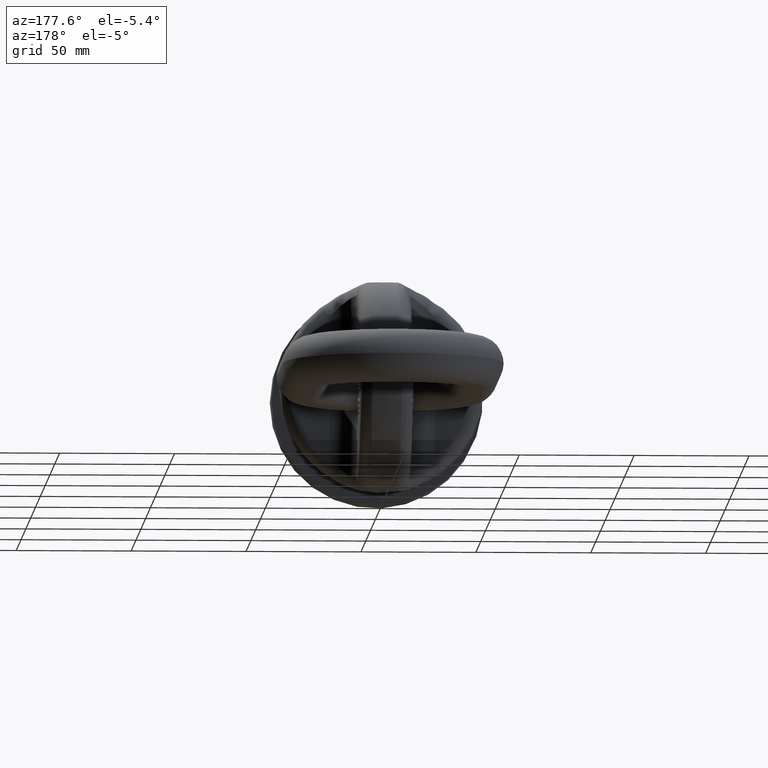
[diagram: clean part render]
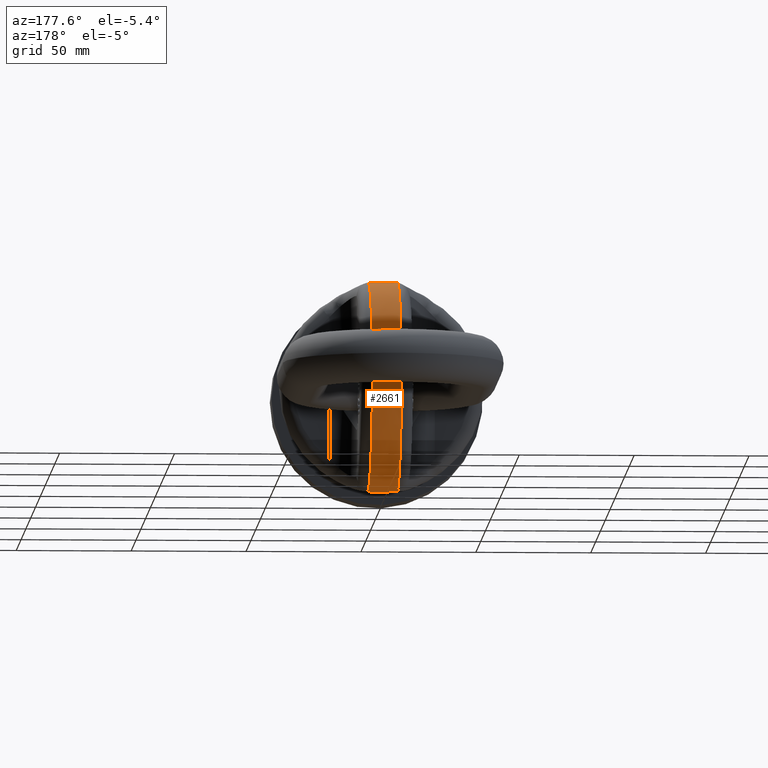
[diagram: same view with one face highlighted and labeled with its STEP entity id]
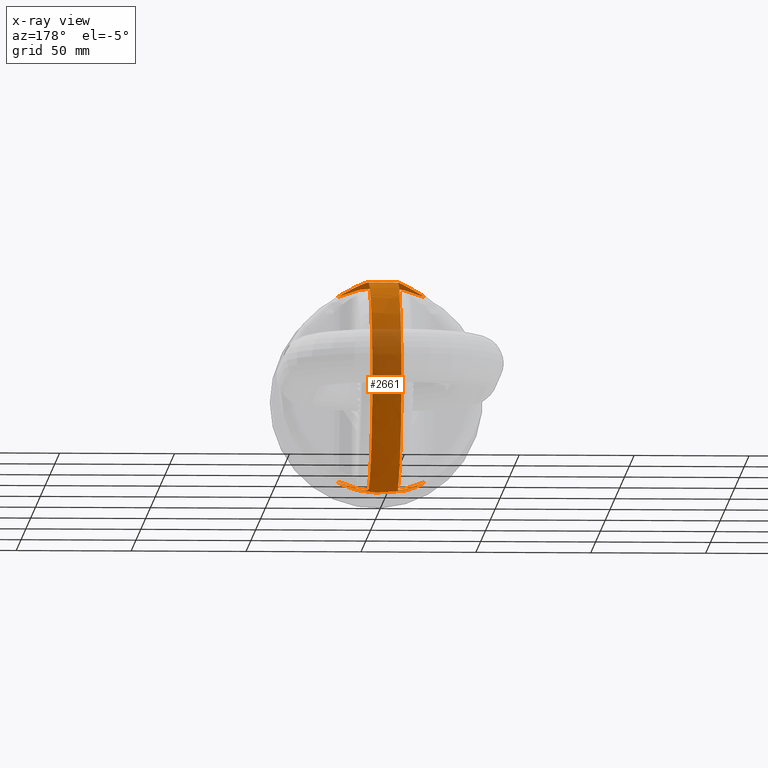
[diagram: x-ray of the same camera — body ghosted, the highlighted face saturated]
A machine part, auxiliary view. The second image highlights one B-rep face of the part: STEP entity #2661.
The next image is the same camera in x-ray: the body ghosted, the highlighted face saturated — about 24% of this face is hidden behind the body in this view.
In plain terms, the highlighted spherical surface has radius 46 mm.
Its self-contained STEP definition (entity closure, byte-faithful):
#307=SPHERICAL_SURFACE('',#5648,46.);
#349=B_SPLINE_CURVE_WITH_KNOTS('',3,(#7009,#7010,#7011,#7012,#7013,#7014),
 .UNSPECIFIED.,.F.,.F.,(4,2,4),(0.,0.5,1.),.UNSPECIFIED.);
#350=B_SPLINE_CURVE_WITH_KNOTS('',3,(#7018,#7019,#7020,#7021,#7022,#7023),
 .UNSPECIFIED.,.F.,.F.,(4,2,4),(0.,0.5,1.),.UNSPECIFIED.);
#351=B_SPLINE_CURVE_WITH_KNOTS('',3,(#7027,#7028,#7029,#7030,#7031,#7032),
 .UNSPECIFIED.,.F.,.F.,(4,2,4),(0.,0.5,1.),.UNSPECIFIED.);
#352=B_SPLINE_CURVE_WITH_KNOTS('',3,(#7036,#7037,#7038,#7039,#7040,#7041),
 .UNSPECIFIED.,.F.,.F.,(4,2,4),(0.,0.5,1.),.UNSPECIFIED.);
#1814=FACE_OUTER_BOUND('',#3096,.T.);
#2661=ADVANCED_FACE('',(#1814),#307,.T.);
#3096=EDGE_LOOP('',(#3513,#3514,#3515,#3516,#3517,#3518,#3519,#3520));
#3513=ORIENTED_EDGE('',*,*,#5058,.F.);
#3514=ORIENTED_EDGE('',*,*,#5059,.T.);
#3515=ORIENTED_EDGE('',*,*,#5060,.T.);
#3516=ORIENTED_EDGE('',*,*,#5061,.T.);
#3517=ORIENTED_EDGE('',*,*,#5062,.F.);
#3518=ORIENTED_EDGE('',*,*,#5063,.T.);
#3519=ORIENTED_EDGE('',*,*,#5064,.T.);
#3520=ORIENTED_EDGE('',*,*,#5065,.T.);
#4645=VERTEX_POINT('',#7007);
#4646=VERTEX_POINT('',#7008);
#4647=VERTEX_POINT('',#7015);
#4648=VERTEX_POINT('',#7017);
#4649=VERTEX_POINT('',#7024);
#4650=VERTEX_POINT('',#7026);
#4651=VERTEX_POINT('',#7033);
#4652=VERTEX_POINT('',#7035);
#5058=EDGE_CURVE('',#4645,#4646,#5553,.T.);
#5059=EDGE_CURVE('',#4645,#4647,#349,.T.);
#5060=EDGE_CURVE('',#4647,#4648,#5554,.T.);
#5061=EDGE_CURVE('',#4648,#4649,#350,.T.);
#5062=EDGE_CURVE('',#4650,#4649,#5555,.T.);
#5063=EDGE_CURVE('',#4650,#4651,#351,.T.);
#5064=EDGE_CURVE('',#4651,#4652,#5556,.T.);
#5065=EDGE_CURVE('',#4652,#4646,#352,.T.);
#5553=CIRCLE('',#5644,44.6040210296982);
#5554=CIRCLE('',#5645,45.5630812720123);
#5555=CIRCLE('',#5646,44.6040210296982);
#5556=CIRCLE('',#5647,45.5630812720123);
#5644=AXIS2_PLACEMENT_3D('',#7006,#5959,#5960);
#5645=AXIS2_PLACEMENT_3D('',#7016,#5961,#5962);
#5646=AXIS2_PLACEMENT_3D('',#7025,#5963,#5964);
#5647=AXIS2_PLACEMENT_3D('',#7034,#5965,#5966);
#5648=AXIS2_PLACEMENT_3D('',#7042,#5967,#5968);
#5959=DIRECTION('',(0.,-1.,0.));
#5960=DIRECTION('',(0.,0.,-1.));
#5961=DIRECTION('',(1.,3.74156043838135E-16,2.34291072916505E-15));
#5962=DIRECTION('',(3.8073006204749E-16,-1.,8.79206184588342E-31));
#5963=DIRECTION('',(0.,-1.,0.));
#5964=DIRECTION('',(0.,0.,-1.));
#5965=DIRECTION('',(-1.,3.74156043838135E-16,0.));
#5966=DIRECTION('',(-3.8073006204749E-16,-1.,0.));
#5967=DIRECTION('',(6.12323399573677E-17,-1.,0.));
#5968=DIRECTION('',(1.,0.,0.));
#7006=CARTESIAN_POINT('',(0.,62.7536091130426,0.));
#7007=CARTESIAN_POINT('',(-19.0658854113883,62.7536091130426,-40.3238230516102));
#7008=CARTESIAN_POINT('',(19.0658854113883,62.7536091130426,-40.3238230516102));
#7009=CARTESIAN_POINT('',(-19.0658854113883,62.7536091130426,-40.3238230516103));
#7010=CARTESIAN_POINT('',(-15.6589421955209,64.0973799500899,-42.3094721045357));
#7011=CARTESIAN_POINT('',(-12.3940464076201,66.5031072569069,-43.8589004368606));
#7012=CARTESIAN_POINT('',(-7.66656665600717,73.1737931290923,-45.5407517790561));
#7013=CARTESIAN_POINT('',(-6.32499999999988,77.3338114370422,-45.6344591871543));
#7014=CARTESIAN_POINT('',(-6.32499999999989,81.475,-44.9457311654845));
#7015=CARTESIAN_POINT('',(-6.32499999999988,81.475,-44.9457311654845));
#7016=CARTESIAN_POINT('',(-6.32499999999999,74.,-1.48189103619689E-14));
#7017=CARTESIAN_POINT('',(-6.32500000000009,81.475,44.9457311654845));
#7018=CARTESIAN_POINT('',(-6.3250000000001,81.475,44.9457311654845));
#7019=CARTESIAN_POINT('',(-6.3250000000001,77.3247485823992,45.6359664457237));
#7020=CARTESIAN_POINT('',(-7.69286635418536,73.1262415183092,45.5332572584253));
#7021=CARTESIAN_POINT('',(-12.4024855817113,66.5017181466277,43.854022436174));
#7022=CARTESIAN_POINT('',(-15.6449151505764,64.1029125148356,42.3176474061902));
#7023=CARTESIAN_POINT('',(-19.0658854113884,62.7536091130426,40.3238230516102));
#7024=CARTESIAN_POINT('',(-19.0658854113884,62.7536091130426,40.3238230516102));
#7025=CARTESIAN_POINT('',(0.,62.7536091130426,0.));
#7026=CARTESIAN_POINT('',(19.0658854113884,62.7536091130426,40.3238230516102));
#7027=CARTESIAN_POINT('',(19.0658854113884,62.7536091130426,40.3238230516102));
#7028=CARTESIAN_POINT('',(15.658942195521,64.0973799500899,42.3094721045357));
#7029=CARTESIAN_POINT('',(12.3940464076202,66.5031072569069,43.8589004368606));
#7030=CARTESIAN_POINT('',(7.66656665600728,73.1737931290924,45.5407517790561));
#7031=CARTESIAN_POINT('',(6.32499999999999,77.3338114370422,45.6344591871543));
#7032=CARTESIAN_POINT('',(6.32499999999999,81.475,44.9457311654845));
#7033=CARTESIAN_POINT('',(6.32499999999999,81.475,44.9457311654845));
#7034=CARTESIAN_POINT('',(6.32499999999999,74.,0.));
#7035=CARTESIAN_POINT('',(6.32499999999999,81.475,-44.9457311654845));
#7036=CARTESIAN_POINT('',(6.32499999999999,81.475,-44.9457311654845));
#7037=CARTESIAN_POINT('',(6.32499999999999,77.3247485823992,-45.6359664457237));
#7038=CARTESIAN_POINT('',(7.69286635418526,73.1262415183092,-45.5332572584254));
#7039=CARTESIAN_POINT('',(12.4024855817112,66.5017181466277,-43.8540224361741));
#7040=CARTESIAN_POINT('',(15.6449151505764,64.1029125148356,-42.3176474061903));
#7041=CARTESIAN_POINT('',(19.0658854113883,62.7536091130426,-40.3238230516103));
#7042=CARTESIAN_POINT('',(0.,74.,0.));